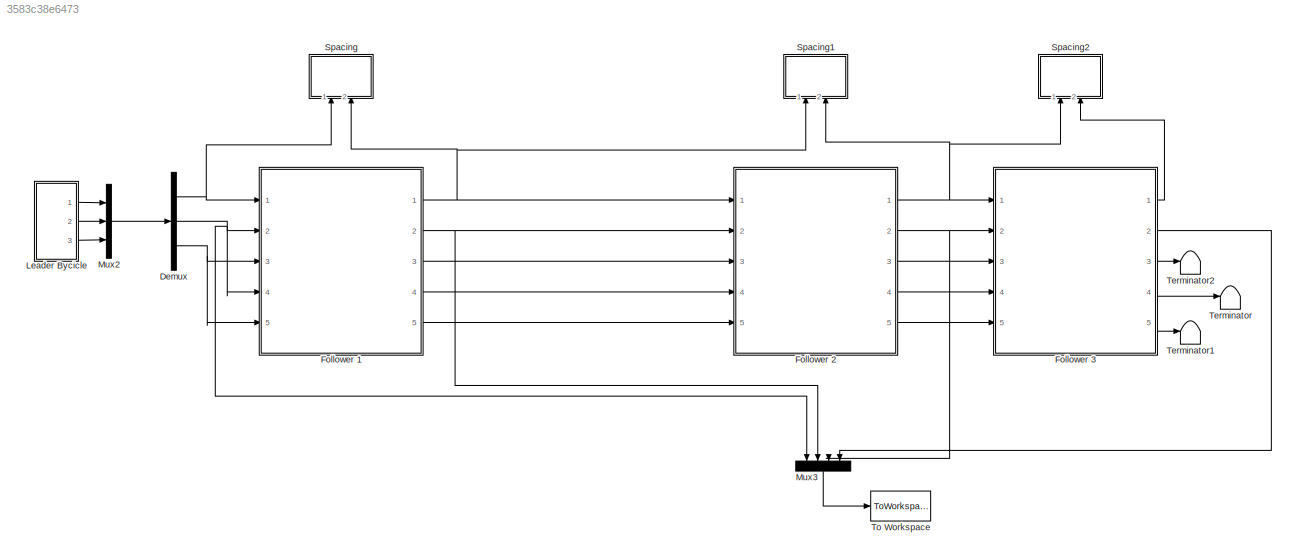
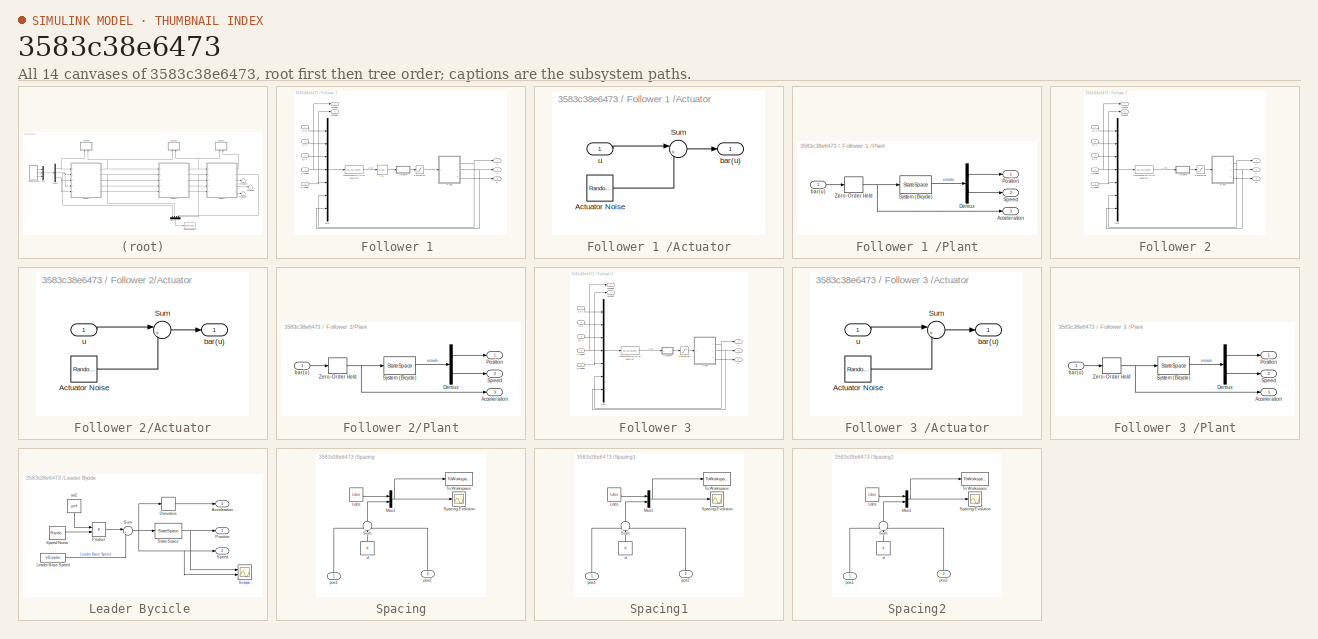
[diagram: thumbnail index - all 14 canvases of the model, root first then tree order]
MODEL slx_3583c38e6473
KIND model
CONFIG AbsTol = auto
CONFIG EnableMultiTasking = off
CONFIG FixedStep = auto
CONFIG MaxStep = auto
CONFIG MinStep = auto
CONFIG RelTol = 1e-3
CONFIG SampleTimeConstraint = Unconstrained
CONFIG Solver = VariableStepAuto
CONFIG SolverName = VariableStepAuto
CONFIG StartTime = 0.0
CONFIG StopTime = tSimul
BLOCK [Demux] Demux
  DisplayOption = bar
  Outputs = 3
  Ports = [1, 3]
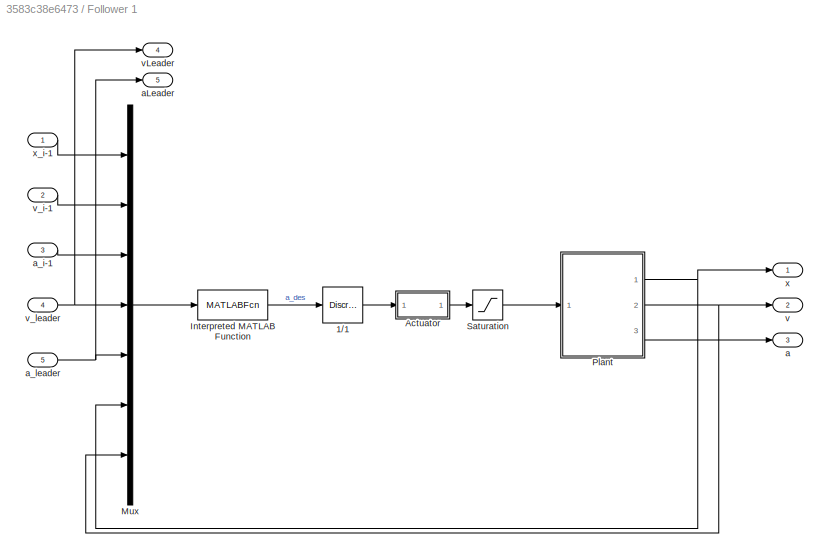
BLOCK [SubSystem] Follower 1 
  Ports = [5, 5]
  RequestExecContextInheritance = off
  Variant = off
BLOCK [DiscreteTransferFcn] Follower 1 /1//1 
  Denominator = [1]
  InputPortMap = u0
  Ports = [1, 1]
  SampleTime = ts
BLOCK [SubSystem] Follower 1 /Actuator
  Ports = [1, 1]
  RequestExecContextInheritance = off
  Variant = off
BLOCK [RandomNumber] Follower 1 /Actuator/Actuator Noise
  Mean = meanError
  SampleTime = ts
  Variance = varError
BLOCK [Sum] Follower 1 /Actuator/Sum
  IconShape = round
  InputSameDT = off
  Inputs = |++
  OutDataTypeStr = Inherit: Inherit via internal rule
  Ports = [2, 1]
  SaturateOnIntegerOverflow = off
BLOCK [Outport] Follower 1 /Actuator/bar(u)
  IconDisplay = Port number
BLOCK [Inport] Follower 1 /Actuator/u
  IconDisplay = Port number
BLOCK [MATLABFcn] Follower 1 /Interpreted MATLAB Function
  MATLABFcn = slidingFunction(u(1),u(2),u(3),u(4),u(5),u(6),u(7),Ldes)
  OutputDimensions = 1
  Ports = [1, 1]
BLOCK [Mux] Follower 1 /Mux
  DisplayOption = bar
  Inputs = 7
  Ports = [7, 1]
BLOCK [SubSystem] Follower 1 /Plant
  Ports = [1, 3]
  RequestExecContextInheritance = off
  Variant = off
BLOCK [Outport] Follower 1 /Plant/Acceleration
  IconDisplay = Port number
  Port = 3
BLOCK [Demux] Follower 1 /Plant/Demux
  DisplayOption = bar
  Outputs = 2
  Ports = [1, 2]
BLOCK [Outport] Follower 1 /Plant/Position
  IconDisplay = Port number
BLOCK [Outport] Follower 1 /Plant/Speed 
  IconDisplay = Port number
  Port = 2
BLOCK [StateSpace] Follower 1 /Plant/System (Bicycle) 
  A = Acont
  B = Bcont
  C = Ccont
  ContinuousStateAttributes = 'Position'
  D = Dcont
  Ports = [1, 1]
  X0 = [x0Bici1,v0Bici1]
BLOCK [ZeroOrderHold] Follower 1 /Plant/Zero-Order Hold
  SampleTime = ts
BLOCK [Inport] Follower 1 /Plant/bar(u)
  IconDisplay = Port number
BLOCK [Saturate] Follower 1 /Saturation
  InputPortMap = u0
  LowerLimit = aLB
  Ports = [1, 1]
  UpperLimit = aUB
BLOCK [Outport] Follower 1 /a
  IconDisplay = Port number
  Port = 3
BLOCK [Outport] Follower 1 /aLeader
  IconDisplay = Port number
  Port = 5
BLOCK [Inport] Follower 1 /a_i-1
  IconDisplay = Port number
  Port = 3
BLOCK [Inport] Follower 1 /a_leader
  IconDisplay = Port number
  Port = 5
BLOCK [Outport] Follower 1 /v
  IconDisplay = Port number
  Port = 2
BLOCK [Outport] Follower 1 /vLeader 
  IconDisplay = Port number
  Port = 4
BLOCK [Inport] Follower 1 /v_i-1
  IconDisplay = Port number
  Port = 2
BLOCK [Inport] Follower 1 /v_leader
  IconDisplay = Port number
  Port = 4
BLOCK [Outport] Follower 1 /x
  IconDisplay = Port number
BLOCK [Inport] Follower 1 /x_i-1 
  IconDisplay = Port number
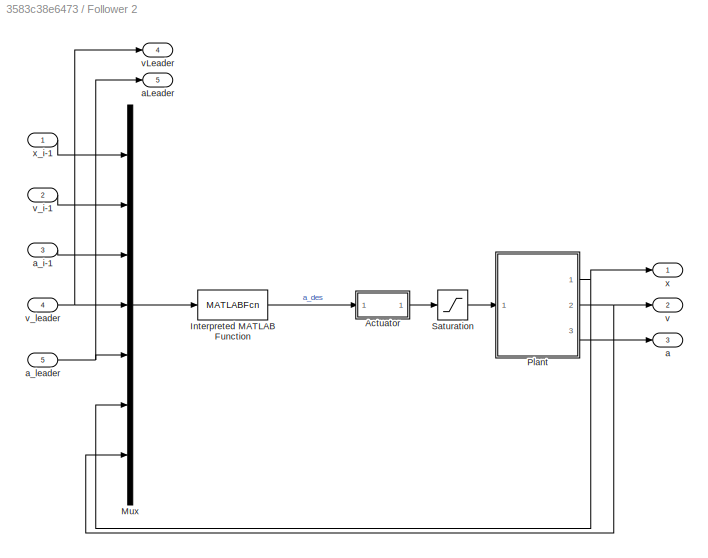
BLOCK [SubSystem] Follower 2
  Ports = [5, 5]
  RequestExecContextInheritance = off
  Variant = off
BLOCK [SubSystem] Follower 2/Actuator
  Ports = [1, 1]
  RequestExecContextInheritance = off
  Variant = off
BLOCK [RandomNumber] Follower 2/Actuator/Actuator Noise
  Mean = meanError
  SampleTime = ts
  Variance = varError
BLOCK [Sum] Follower 2/Actuator/Sum
  IconShape = round
  InputSameDT = off
  Inputs = |++
  OutDataTypeStr = Inherit: Inherit via internal rule
  Ports = [2, 1]
  SaturateOnIntegerOverflow = off
BLOCK [Outport] Follower 2/Actuator/bar(u)
  IconDisplay = Port number
BLOCK [Inport] Follower 2/Actuator/u
  IconDisplay = Port number
BLOCK [MATLABFcn] Follower 2/Interpreted MATLAB Function
  MATLABFcn = slidingFunction(u(1),u(2),u(3),u(4),u(5),u(6),u(7),Ldes)
  OutputDimensions = 1
  Ports = [1, 1]
BLOCK [Mux] Follower 2/Mux
  DisplayOption = bar
  Inputs = 7
  Ports = [7, 1]
BLOCK [SubSystem] Follower 2/Plant
  Ports = [1, 3]
  RequestExecContextInheritance = off
  Variant = off
BLOCK [Outport] Follower 2/Plant/Acceleration
  IconDisplay = Port number
  Port = 3
BLOCK [Demux] Follower 2/Plant/Demux
  DisplayOption = bar
  Outputs = 2
  Ports = [1, 2]
BLOCK [Outport] Follower 2/Plant/Position
  IconDisplay = Port number
BLOCK [Outport] Follower 2/Plant/Speed 
  IconDisplay = Port number
  Port = 2
BLOCK [StateSpace] Follower 2/Plant/System (Bicycle) 
  A = Acont
  B = Bcont
  C = Ccont
  ContinuousStateAttributes = 'Position'
  D = Dcont
  Ports = [1, 1]
  X0 = [x0Bici2,v0Bici2]
BLOCK [ZeroOrderHold] Follower 2/Plant/Zero-Order Hold
  SampleTime = ts
BLOCK [Inport] Follower 2/Plant/bar(u)
  IconDisplay = Port number
BLOCK [Saturate] Follower 2/Saturation
  InputPortMap = u0
  LowerLimit = aLB
  Ports = [1, 1]
  UpperLimit = aUB
BLOCK [Outport] Follower 2/a
  IconDisplay = Port number
  Port = 3
BLOCK [Outport] Follower 2/aLeader
  IconDisplay = Port number
  Port = 5
BLOCK [Inport] Follower 2/a_i-1
  IconDisplay = Port number
  Port = 3
BLOCK [Inport] Follower 2/a_leader
  IconDisplay = Port number
  Port = 5
BLOCK [Outport] Follower 2/v
  IconDisplay = Port number
  Port = 2
BLOCK [Outport] Follower 2/vLeader 
  IconDisplay = Port number
  Port = 4
BLOCK [Inport] Follower 2/v_i-1
  IconDisplay = Port number
  Port = 2
BLOCK [Inport] Follower 2/v_leader
  IconDisplay = Port number
  Port = 4
BLOCK [Outport] Follower 2/x
  IconDisplay = Port number
BLOCK [Inport] Follower 2/x_i-1 
  IconDisplay = Port number
BLOCK [SubSystem] Follower 3 
  Ports = [5, 5]
  RequestExecContextInheritance = off
  Variant = off
BLOCK [SubSystem] Follower 3 /Actuator
  Ports = [1, 1]
  RequestExecContextInheritance = off
  Variant = off
BLOCK [RandomNumber] Follower 3 /Actuator/Actuator Noise
  Mean = meanError
  SampleTime = ts
  Variance = varError
BLOCK [Sum] Follower 3 /Actuator/Sum
  IconShape = round
  InputSameDT = off
  Inputs = |++
  OutDataTypeStr = Inherit: Inherit via internal rule
  Ports = [2, 1]
  SaturateOnIntegerOverflow = off
BLOCK [Outport] Follower 3 /Actuator/bar(u)
  IconDisplay = Port number
BLOCK [Inport] Follower 3 /Actuator/u
  IconDisplay = Port number
BLOCK [MATLABFcn] Follower 3 /Interpreted MATLAB Function
  MATLABFcn = slidingFunction(u(1),u(2),u(3),u(4),u(5),u(6),u(7),Ldes)
  OutputDimensions = 1
  Ports = [1, 1]
BLOCK [Mux] Follower 3 /Mux
  DisplayOption = bar
  Inputs = 7
  Ports = [7, 1]
BLOCK [SubSystem] Follower 3 /Plant
  Ports = [1, 3]
  RequestExecContextInheritance = off
  Variant = off
BLOCK [Outport] Follower 3 /Plant/Acceleration
  IconDisplay = Port number
  Port = 3
BLOCK [Demux] Follower 3 /Plant/Demux
  DisplayOption = bar
  Outputs = 2
  Ports = [1, 2]
BLOCK [Outport] Follower 3 /Plant/Position
  IconDisplay = Port number
BLOCK [Outport] Follower 3 /Plant/Speed 
  IconDisplay = Port number
  Port = 2
BLOCK [StateSpace] Follower 3 /Plant/System (Bicycle) 
  A = Acont
  B = Bcont
  C = Ccont
  ContinuousStateAttributes = 'Position'
  D = Dcont
  Ports = [1, 1]
  X0 = [x0Bici3,v0Bici3]
BLOCK [ZeroOrderHold] Follower 3 /Plant/Zero-Order Hold
  SampleTime = ts
BLOCK [Inport] Follower 3 /Plant/bar(u)
  IconDisplay = Port number
BLOCK [Saturate] Follower 3 /Saturation
  InputPortMap = u0
  LowerLimit = aLB
  Ports = [1, 1]
  UpperLimit = aUB
BLOCK [Outport] Follower 3 /a
  IconDisplay = Port number
  Port = 3
BLOCK [Outport] Follower 3 /aLeader
  IconDisplay = Port number
  Port = 5
BLOCK [Inport] Follower 3 /a_i-1
  IconDisplay = Port number
  Port = 3
BLOCK [Inport] Follower 3 /a_leader
  IconDisplay = Port number
  Port = 5
BLOCK [Outport] Follower 3 /v
  IconDisplay = Port number
  Port = 2
BLOCK [Outport] Follower 3 /vLeader 
  IconDisplay = Port number
  Port = 4
BLOCK [Inport] Follower 3 /v_i-1
  IconDisplay = Port number
  Port = 2
BLOCK [Inport] Follower 3 /v_leader
  IconDisplay = Port number
  Port = 4
BLOCK [Outport] Follower 3 /x
  IconDisplay = Port number
BLOCK [Inport] Follower 3 /x_i-1 
  IconDisplay = Port number
BLOCK [SubSystem] Leader Bycicle 
  Ports = [0, 3]
  RequestExecContextInheritance = off
  Variant = off
BLOCK [Outport] Leader Bycicle /Acceleration 
  IconDisplay = Port number
  Port = 3
BLOCK [Derivative] Leader Bycicle /Derivative
BLOCK [Constant] Leader Bycicle /Leader Base Speed 
  Value = v0Leader
BLOCK [Outport] Leader Bycicle /Position
  IconDisplay = Port number
BLOCK [Product] Leader Bycicle /Product
  InputSameDT = off
  OutDataTypeStr = Inherit: Inherit via internal rule
  Ports = [2, 1]
  RndMeth = Floor
  SaturateOnIntegerOverflow = off
BLOCK [Scope] Leader Bycicle /Scope
  NumInputPorts = 2
  Ports = [2]
  ScopeSpecificationString = Simulink.scopes.TimeScopeBlockCfg('CurrentConfiguration', extmgr.ConfigurationSet(extmgr.Configuration('Core','General UI',true),extmgr.Configuration('Core','Source UI',true),extmgr.Configuration('Sources','WiredSimulink',true),extmgr.Configuration('Visuals','Time Domain',true,'SerializedDisplays',{struct('MinYLimReal','-43.30709','MaxYLimReal','415.60851','YLabelReal','','MinYLimMag','0.00000','M...<+1353ch>
BLOCK [Outport] Leader Bycicle /Speed
  IconDisplay = Port number
  Port = 2
BLOCK [RandomNumber] Leader Bycicle /Speed Noise
  SampleTime = ts
  Variance = 0.02
BLOCK [StateSpace] Leader Bycicle /State-Space
  A = [0]
  B = [1]
  C = [1]
  ContinuousStateAttributes = 'position'
  D = [0]
  Ports = [1, 1]
  X0 = [x0Leader]
BLOCK [Sum] Leader Bycicle /Sum
  IconShape = round
  InputSameDT = off
  Inputs = |++
  OutDataTypeStr = Inherit: Inherit via internal rule
  Ports = [2, 1]
  SaturateOnIntegerOverflow = off
BLOCK [Constant] Leader Bycicle /on2
  Value = perf
BLOCK [Mux] Mux2
  DisplayOption = bar
  Inputs = 3
  Ports = [3, 1]
BLOCK [Mux] Mux3
  DisplayOption = bar
  Ports = [4, 1]
BLOCK [SubSystem] Spacing
  Ports = [2]
  RequestExecContextInheritance = off
  Variant = off
BLOCK [Constant] Spacing/Ldes
  Value = Ldes
BLOCK [Mux] Spacing/Mux1
  DisplayOption = bar
  Inputs = 2
  Ports = [2, 1]
BLOCK [Scope] Spacing/Spacing Evolution
  NumInputPorts = 1
  Ports = [1]
  ScopeSpecificationString = Simulink.scopes.TimeScopeBlockCfg('CurrentConfiguration', extmgr.ConfigurationSet(extmgr.Configuration('Core','General UI',true),extmgr.Configuration('Core','Source UI',true),extmgr.Configuration('Sources','WiredSimulink',true,'DataLoggingVariableName','ScopeData1'),extmgr.Configuration('Visuals','Time Domain',true,'SerializedDisplays',{struct('MinYLimReal','2.86475','MaxYLimReal','11.56373','YLab...<+1442ch>  <repeated x3 — deduplicated; at blocks: Spacing Evolution>
BLOCK [Sum] Spacing/Sum
  IconShape = round
  InputSameDT = off
  Inputs = +--
  OutDataTypeStr = Inherit: Inherit via internal rule
  Ports = [3, 1]
  SaturateOnIntegerOverflow = off
BLOCK [ToWorkspace] Spacing/To Workspace
  FixptAsFi = on
  MaxDataPoints = inf
  Ports = [1]
  SampleTime = -1
  Save2DSignal = 3-D array (concatenate along third dimension)
  SaveFormat = Timeseries
  VariableName = spacing
BLOCK [Constant] Spacing/d 
  Value = d
BLOCK [Inport] Spacing/pos1
  IconDisplay = Port number
BLOCK [Inport] Spacing/pos2
  IconDisplay = Port number
  Port = 2
BLOCK [SubSystem] Spacing1
  Ports = [2]
  RequestExecContextInheritance = off
  Variant = off
BLOCK [Constant] Spacing1/Ldes
  Value = Ldes
BLOCK [Mux] Spacing1/Mux1
  DisplayOption = bar
  Inputs = 2
  Ports = [2, 1]
BLOCK [Scope] Spacing1/Spacing Evolution
  NumInputPorts = 1
  Ports = [1]
BLOCK [Sum] Spacing1/Sum
  IconShape = round
  InputSameDT = off
  Inputs = +--
  OutDataTypeStr = Inherit: Inherit via internal rule
  Ports = [3, 1]
  SaturateOnIntegerOverflow = off
BLOCK [ToWorkspace] Spacing1/To Workspace
  FixptAsFi = on
  MaxDataPoints = inf
  Ports = [1]
  SampleTime = -1
  Save2DSignal = 3-D array (concatenate along third dimension)
  SaveFormat = Timeseries
  VariableName = spacing2
BLOCK [Constant] Spacing1/d 
  Value = d
BLOCK [Inport] Spacing1/pos1
  IconDisplay = Port number
BLOCK [Inport] Spacing1/pos2
  IconDisplay = Port number
  Port = 2
BLOCK [SubSystem] Spacing2
  Ports = [2]
  RequestExecContextInheritance = off
  Variant = off
BLOCK [Constant] Spacing2/Ldes
  Value = Ldes
BLOCK [Mux] Spacing2/Mux1
  DisplayOption = bar
  Inputs = 2
  Ports = [2, 1]
BLOCK [Scope] Spacing2/Spacing Evolution
  NumInputPorts = 1
  Ports = [1]
BLOCK [Sum] Spacing2/Sum
  IconShape = round
  InputSameDT = off
  Inputs = +--
  OutDataTypeStr = Inherit: Inherit via internal rule
  Ports = [3, 1]
  SaturateOnIntegerOverflow = off
BLOCK [ToWorkspace] Spacing2/To Workspace
  FixptAsFi = on
  MaxDataPoints = inf
  Ports = [1]
  SampleTime = -1
  Save2DSignal = 3-D array (concatenate along third dimension)
  SaveFormat = Timeseries
  VariableName = spacing3
BLOCK [Constant] Spacing2/d 
  Value = d
BLOCK [Inport] Spacing2/pos1
  IconDisplay = Port number
BLOCK [Inport] Spacing2/pos2
  IconDisplay = Port number
  Port = 2
BLOCK [Terminator] Terminator
BLOCK [Terminator] Terminator1
BLOCK [Terminator] Terminator2
BLOCK [ToWorkspace] To Workspace
  FixptAsFi = on
  MaxDataPoints = inf
  Ports = [1]
  SampleTime = -1
  Save2DSignal = 3-D array (concatenate along third dimension)
  SaveFormat = Timeseries
  VariableName = speed
NET Demux:1 -> Follower 1 :1, Spacing:1
NET Demux:2 -> Follower 1 :2, Follower 1 :4, Mux3:1
NET Demux:3 -> Follower 1 :3, Follower 1 :5
LINE Follower 1 /1//1 :1 -> Follower 1 /Actuator:1
LINE Follower 1 /Actuator/Actuator Noise:1 -> Follower 1 /Actuator/Sum:2
LINE Follower 1 /Actuator/Sum:1 -> Follower 1 /Actuator/bar(u):1
LINE Follower 1 /Actuator/u:1 -> Follower 1 /Actuator/Sum:1
LINE Follower 1 /Actuator:1 -> Follower 1 /Saturation:1
LINE Follower 1 /Interpreted MATLAB Function:1 -> Follower 1 /1//1 :1
LINE Follower 1 /Mux:1 -> Follower 1 /Interpreted MATLAB Function:1
LINE Follower 1 /Plant/Demux:1 -> Follower 1 /Plant/Position:1
LINE Follower 1 /Plant/Demux:2 -> Follower 1 /Plant/Speed :1
LINE Follower 1 /Plant/System (Bicycle) :1 -> Follower 1 /Plant/Demux:1
NET Follower 1 /Plant/Zero-Order Hold:1 -> Follower 1 /Plant/Acceleration:1, Follower 1 /Plant/System (Bicycle) :1
LINE Follower 1 /Plant/bar(u):1 -> Follower 1 /Plant/Zero-Order Hold:1
NET Follower 1 /Plant:1 -> Follower 1 /Mux:6, Follower 1 /x:1
NET Follower 1 /Plant:2 -> Follower 1 /Mux:7, Follower 1 /v:1
LINE Follower 1 /Plant:3 -> Follower 1 /a:1
LINE Follower 1 /Saturation:1 -> Follower 1 /Plant:1
LINE Follower 1 /a_i-1:1 -> Follower 1 /Mux:3
NET Follower 1 /a_leader:1 -> Follower 1 /Mux:5, Follower 1 /aLeader:1
LINE Follower 1 /v_i-1:1 -> Follower 1 /Mux:2
NET Follower 1 /v_leader:1 -> Follower 1 /Mux:4, Follower 1 /vLeader :1
LINE Follower 1 /x_i-1 :1 -> Follower 1 /Mux:1
NET Follower 1 :1 -> Follower 2:1, Spacing1:1, Spacing:2
NET Follower 1 :2 -> Follower 2:2, Mux3:2
LINE Follower 1 :3 -> Follower 2:3
LINE Follower 1 :4 -> Follower 2:4
LINE Follower 1 :5 -> Follower 2:5
LINE Follower 2/Actuator/Actuator Noise:1 -> Follower 2/Actuator/Sum:2
LINE Follower 2/Actuator/Sum:1 -> Follower 2/Actuator/bar(u):1
LINE Follower 2/Actuator/u:1 -> Follower 2/Actuator/Sum:1
LINE Follower 2/Actuator:1 -> Follower 2/Saturation:1
LINE Follower 2/Interpreted MATLAB Function:1 -> Follower 2/Actuator:1
LINE Follower 2/Mux:1 -> Follower 2/Interpreted MATLAB Function:1
LINE Follower 2/Plant/Demux:1 -> Follower 2/Plant/Position:1
LINE Follower 2/Plant/Demux:2 -> Follower 2/Plant/Speed :1
LINE Follower 2/Plant/System (Bicycle) :1 -> Follower 2/Plant/Demux:1
NET Follower 2/Plant/Zero-Order Hold:1 -> Follower 2/Plant/Acceleration:1, Follower 2/Plant/System (Bicycle) :1
LINE Follower 2/Plant/bar(u):1 -> Follower 2/Plant/Zero-Order Hold:1
NET Follower 2/Plant:1 -> Follower 2/Mux:6, Follower 2/x:1
NET Follower 2/Plant:2 -> Follower 2/Mux:7, Follower 2/v:1
LINE Follower 2/Plant:3 -> Follower 2/a:1
LINE Follower 2/Saturation:1 -> Follower 2/Plant:1
LINE Follower 2/a_i-1:1 -> Follower 2/Mux:3
NET Follower 2/a_leader:1 -> Follower 2/Mux:5, Follower 2/aLeader:1
LINE Follower 2/v_i-1:1 -> Follower 2/Mux:2
NET Follower 2/v_leader:1 -> Follower 2/Mux:4, Follower 2/vLeader :1
LINE Follower 2/x_i-1 :1 -> Follower 2/Mux:1
NET Follower 2:1 -> Follower 3 :1, Spacing1:2, Spacing2:1
NET Follower 2:2 -> Follower 3 :2, Mux3:3
LINE Follower 2:3 -> Follower 3 :3
LINE Follower 2:4 -> Follower 3 :4
LINE Follower 2:5 -> Follower 3 :5
LINE Follower 3 /Actuator/Actuator Noise:1 -> Follower 3 /Actuator/Sum:2
LINE Follower 3 /Actuator/Sum:1 -> Follower 3 /Actuator/bar(u):1
LINE Follower 3 /Actuator/u:1 -> Follower 3 /Actuator/Sum:1
LINE Follower 3 /Actuator:1 -> Follower 3 /Saturation:1
LINE Follower 3 /Interpreted MATLAB Function:1 -> Follower 3 /Actuator:1
LINE Follower 3 /Mux:1 -> Follower 3 /Interpreted MATLAB Function:1
LINE Follower 3 /Plant/Demux:1 -> Follower 3 /Plant/Position:1
LINE Follower 3 /Plant/Demux:2 -> Follower 3 /Plant/Speed :1
LINE Follower 3 /Plant/System (Bicycle) :1 -> Follower 3 /Plant/Demux:1
NET Follower 3 /Plant/Zero-Order Hold:1 -> Follower 3 /Plant/Acceleration:1, Follower 3 /Plant/System (Bicycle) :1
LINE Follower 3 /Plant/bar(u):1 -> Follower 3 /Plant/Zero-Order Hold:1
NET Follower 3 /Plant:1 -> Follower 3 /Mux:6, Follower 3 /x:1
NET Follower 3 /Plant:2 -> Follower 3 /Mux:7, Follower 3 /v:1
LINE Follower 3 /Plant:3 -> Follower 3 /a:1
LINE Follower 3 /Saturation:1 -> Follower 3 /Plant:1
LINE Follower 3 /a_i-1:1 -> Follower 3 /Mux:3
NET Follower 3 /a_leader:1 -> Follower 3 /Mux:5, Follower 3 /aLeader:1
LINE Follower 3 /v_i-1:1 -> Follower 3 /Mux:2
NET Follower 3 /v_leader:1 -> Follower 3 /Mux:4, Follower 3 /vLeader :1
LINE Follower 3 /x_i-1 :1 -> Follower 3 /Mux:1
LINE Follower 3 :1 -> Spacing2:2
LINE Follower 3 :2 -> Mux3:4
LINE Follower 3 :3 -> Terminator2:1
LINE Follower 3 :4 -> Terminator:1
LINE Follower 3 :5 -> Terminator1:1
LINE Leader Bycicle /Derivative:1 -> Leader Bycicle /Acceleration :1
LINE Leader Bycicle /Leader Base Speed :1 -> Leader Bycicle /Sum:2
LINE Leader Bycicle /Product:1 -> Leader Bycicle /Sum:1
LINE Leader Bycicle /Speed Noise:1 -> Leader Bycicle /Product:2
NET Leader Bycicle /State-Space:1 -> Leader Bycicle /Position:1, Leader Bycicle /Scope:1
NET Leader Bycicle /Sum:1 -> Leader Bycicle /Derivative:1, Leader Bycicle /Scope:2, Leader Bycicle /Speed:1, Leader Bycicle /State-Space:1
LINE Leader Bycicle /on2:1 -> Leader Bycicle /Product:1
LINE Leader Bycicle :1 -> Mux2:1
LINE Leader Bycicle :2 -> Mux2:2
LINE Leader Bycicle :3 -> Mux2:3
LINE Mux2:1 -> Demux:1
LINE Mux3:1 -> To Workspace:1
LINE Spacing/Ldes:1 -> Spacing/Mux1:1
NET Spacing/Mux1:1 -> Spacing/Spacing Evolution:1, Spacing/To Workspace:1
LINE Spacing/Sum:1 -> Spacing/Mux1:2
LINE Spacing/d :1 -> Spacing/Sum:2
LINE Spacing/pos1:1 -> Spacing/Sum:1
LINE Spacing/pos2:1 -> Spacing/Sum:3
LINE Spacing1/Ldes:1 -> Spacing1/Mux1:1
NET Spacing1/Mux1:1 -> Spacing1/Spacing Evolution:1, Spacing1/To Workspace:1
LINE Spacing1/Sum:1 -> Spacing1/Mux1:2
LINE Spacing1/d :1 -> Spacing1/Sum:2
LINE Spacing1/pos1:1 -> Spacing1/Sum:1
LINE Spacing1/pos2:1 -> Spacing1/Sum:3
LINE Spacing2/Ldes:1 -> Spacing2/Mux1:1
NET Spacing2/Mux1:1 -> Spacing2/Spacing Evolution:1, Spacing2/To Workspace:1
LINE Spacing2/Sum:1 -> Spacing2/Mux1:2
LINE Spacing2/d :1 -> Spacing2/Sum:2
LINE Spacing2/pos1:1 -> Spacing2/Sum:1
LINE Spacing2/pos2:1 -> Spacing2/Sum:3
note: NET lines group one-source signal fan-out (src -> all destinations, sorted); 1:1 wires keep LINE
